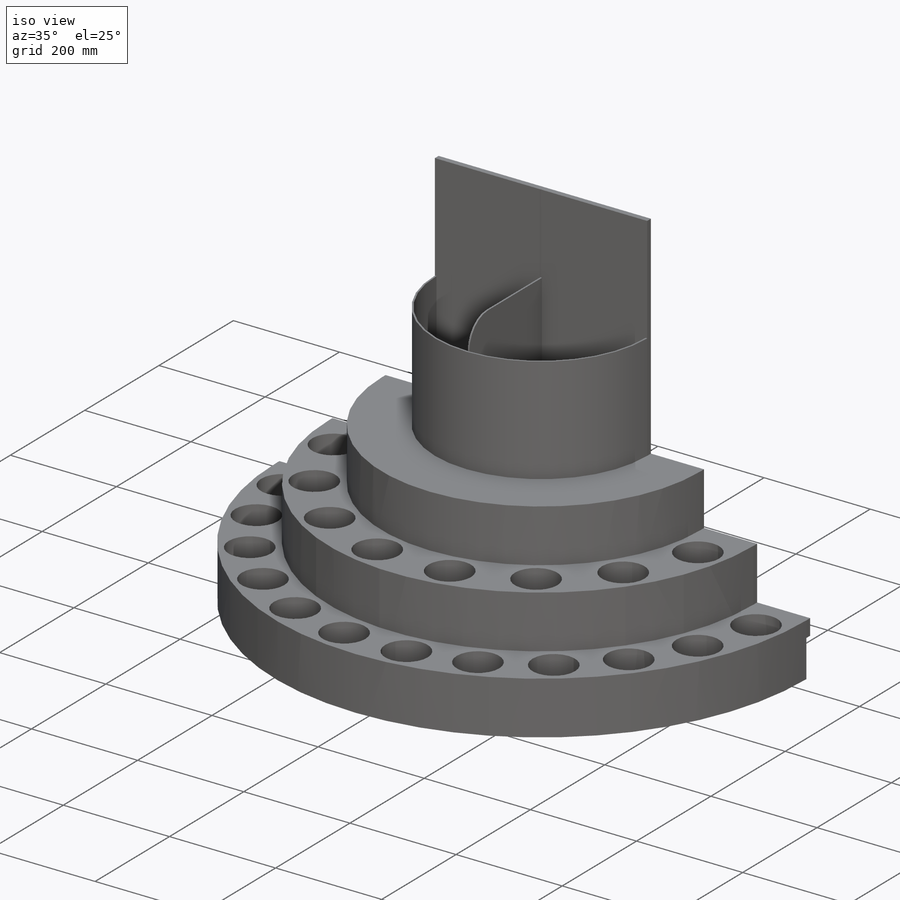
[diagram: iso view]
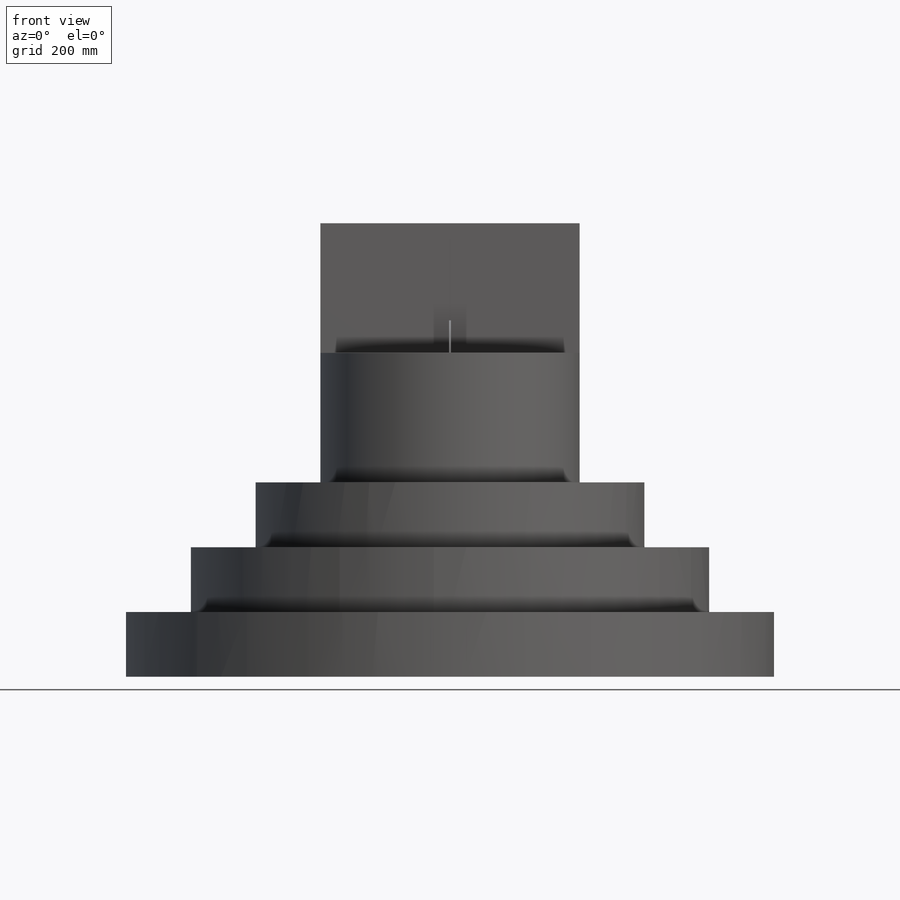
[diagram: front view]
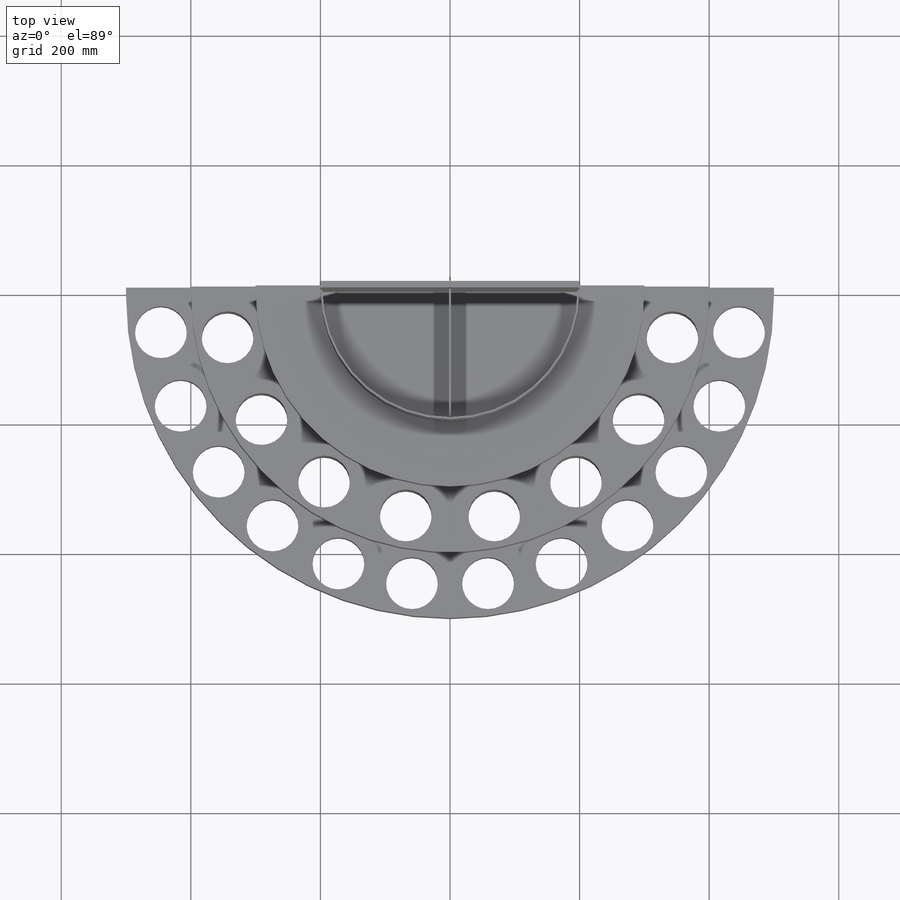
[diagram: top view]
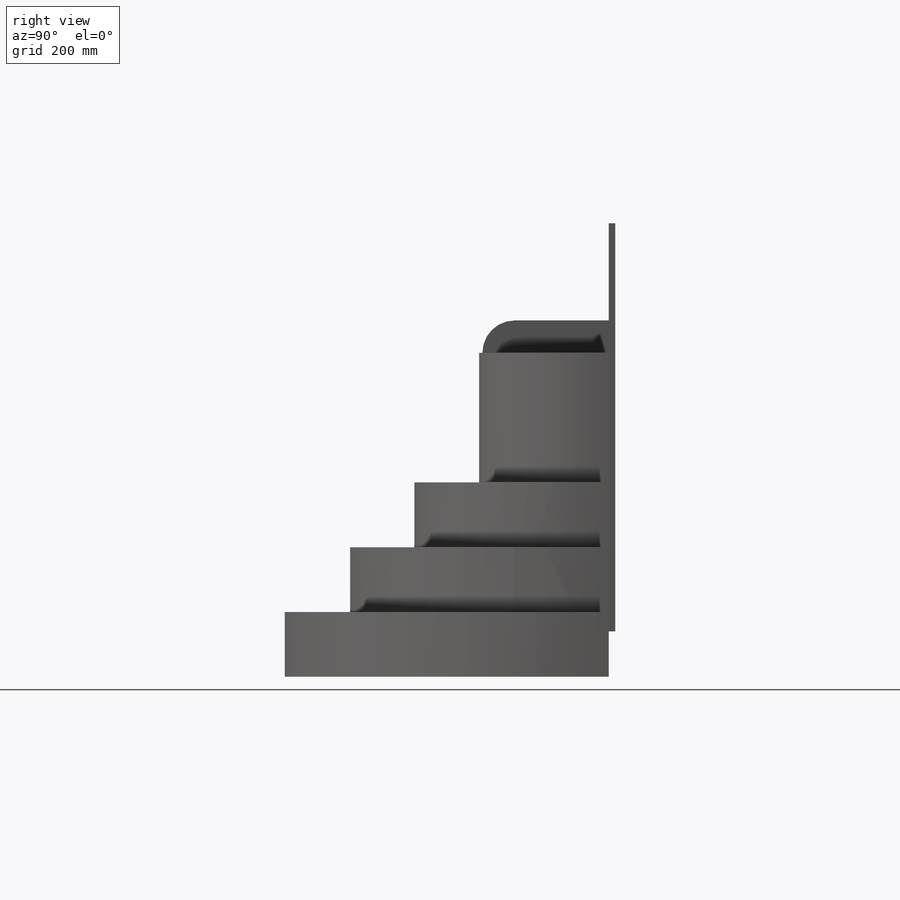
[diagram: right view]
SOLIDWORKS PART (.sldprt)
format: sldprt  version: not decoded by parser v0  size: 367,616 bytes
history: native  units: mm
features: sketch x8, extrude x6, plane x3, cut_extrude x2, material x1, fillet x1 (+13 scaffold rows collapsed)
feature tree (34):
  scaffold x13  (default folders/planes/origin — collapsed)
  material  "Matériau <non spécifié>"
  plane  "Plan de face"
  plane  "Plan de dessus"
  plane  "Plan de droite"
  sketch  "Esquisse1"  dims[D1=500.0mm]
  extrude  "Extrusion1"  Depth=100mm
  sketch  "Esquisse2"  dims[D1=400.0mm]
  extrude  "Extrusion2"  Depth=100mm
  sketch  "Esquisse3"  dims[D1=300.0mm]
  extrude  "Extrusion3"  Depth=100mm
  sketch  "Esquisse4"  dims[c1.D1=~205.510799mm c1.D2=200.0mm c2.D1=3.0mm]
  extrude  "Extrusion4"  Depth=200mm
  sketch  "Esquisse5"  dims[D2=350.0mm D1=700.0mm D3=70.0mm D4=180.0mm]
  extrude  "Extrusion5"  Depth=10mm
  sketch  "Esquisse6"  dims[c1.D1=450.0mm c1.D2=350.0mm c1.D3=250.0mm c1.D5=80.0mm c1.D7=80.0mm c1.D4=450.0mm c2.D4=7.5deg c2.D6=450.0mm c3.D6=7.5deg c3.D7=~446.150188mm c4.D7=15.0deg c4.D8=350.0mm c5.D8=11.25deg c5.D9=350.0mm c6.D9=11.25deg]
  cut_extrude  "Extrusion6"  [1 undecoded]
  sketch  "Esquisse7"  dims[D1=3.0mm D2=195.0mm]
  extrude  "Extrusion8"  Depth=250mm
  fillet  "Congé1"  Radius=50mm
  sketch  "Esquisse8"
  cut_extrude  "Extrusion9"  Depth=0.5mm
decode coverage: 15 of 17 modeling features carry decoded parameters
note: ~ marks probable driven/reference dimensions
note: 1 parameter value undecoded
note: suppression state not decoded; provenance and decode notes live in map.json
